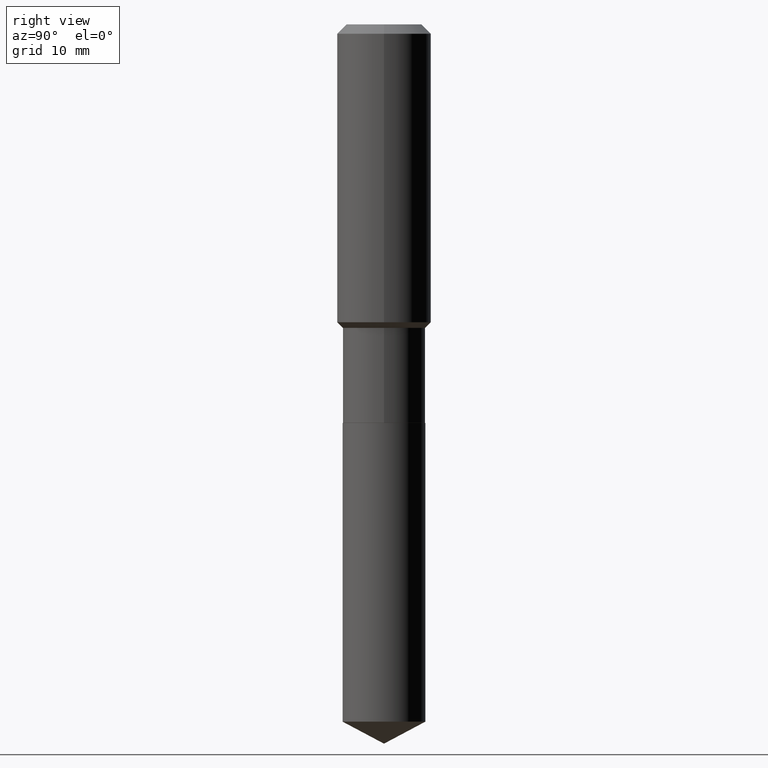
[diagram: clean part render]
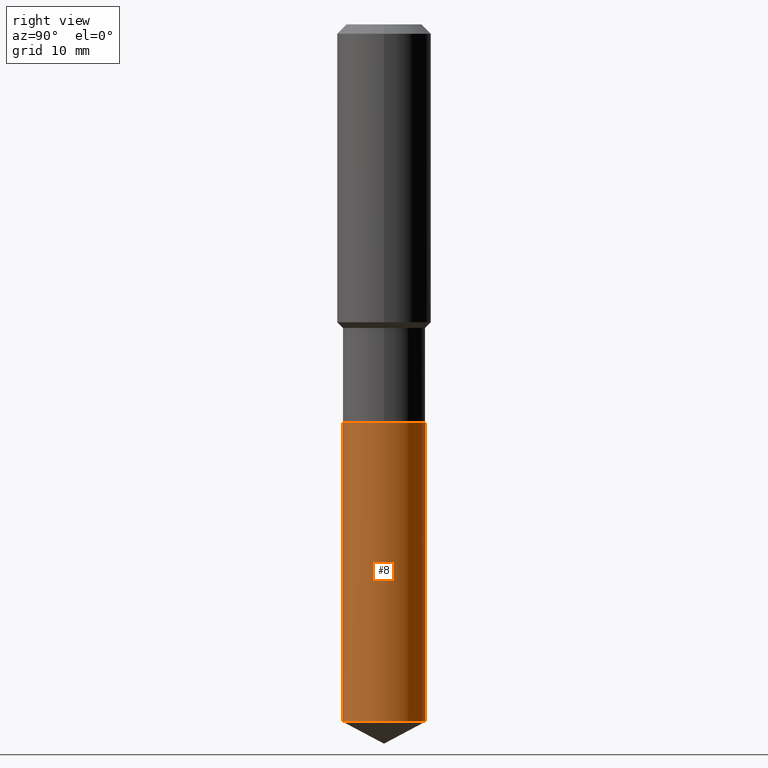
[diagram: same view with one face highlighted and labeled with its STEP entity id]
A machine part, right view. The second image highlights one B-rep face of the part: STEP entity #8.
In plain terms, the highlighted cylindrical surface (partial cylindrical patch) has radius 6.1519 mm, axis along (-0, 0, 1).
Its self-contained STEP definition (entity closure, byte-faithful):
#1 = CARTESIAN_POINT ( 'NONE',  ( -1.691273560535556602E-15, -0.2422000000000081865, -2.334799999999999542 ) ) ;
#8 = ADVANCED_FACE ( 'NONE', ( #30 ), #33, .T. ) ;
#30 = FACE_OUTER_BOUND ( 'NONE', #91, .T. ) ;
#33 = CYLINDRICAL_SURFACE ( 'NONE', #318, 0.2422000000000000264 ) ;
#35 = ORIENTED_EDGE ( 'NONE', *, *, #321, .F. ) ;
#91 = EDGE_LOOP ( 'NONE', ( #326, #375, #411, #35 ) ) ;
#107 = DIRECTION ( 'NONE',  ( -2.445495124633309796E-29, 3.491443649327408440E-15, 1.000000000000000000 ) ) ;
#115 = CARTESIAN_POINT ( 'NONE',  ( 1.720934506011062431E-15, 0.2421999999999857323, -4.083819975651591605 ) ) ;
#137 = VERTEX_POINT ( 'NONE', #115 ) ;
#148 = AXIS2_PLACEMENT_3D ( 'NONE', #433, #153, #455 ) ;
#153 = DIRECTION ( 'NONE',  ( -2.445495124633309796E-29, 3.491443649327408440E-15, 1.000000000000000000 ) ) ;
#154 = CARTESIAN_POINT ( 'NONE',  ( 1.720934506011019438E-15, 0.2421999999999918662, -2.334800000000000875 ) ) ;
#158 = DIRECTION ( 'NONE',  ( -6.982962677686265922E-15, -1.000000000000000000, 3.383791899666717075E-15 ) ) ;
#159 = DIRECTION ( 'NONE',  ( -2.445495124633309796E-29, 3.491443649327408440E-15, 1.000000000000000000 ) ) ;
#188 = DIRECTION ( 'NONE',  ( -2.445495124633309796E-29, 3.491443649327408440E-15, 1.000000000000000000 ) ) ;
#220 = AXIS2_PLACEMENT_3D ( 'NONE', #431, #159, #158 ) ;
#277 = CIRCLE ( 'NONE', #148, 0.2422000000000000264 ) ;
#301 = CARTESIAN_POINT ( 'NONE',  ( 1.720934506011062629E-15, 0.2421999999999918940, -2.334800000000000875 ) ) ;
#318 = AXIS2_PLACEMENT_3D ( 'NONE', #487, #107, #339 ) ;
#321 = EDGE_CURVE ( 'NONE', #439, #347, #333, .T. ) ;
#326 = ORIENTED_EDGE ( 'NONE', *, *, #342, .T. ) ;
#333 = LINE ( 'NONE', #1, #473 ) ;
#339 = DIRECTION ( 'NONE',  ( -6.982962677686265922E-15, -1.000000000000000000, 3.383791899666717075E-15 ) ) ;
#342 = EDGE_CURVE ( 'NONE', #439, #137, #277, .T. ) ;
#347 = VERTEX_POINT ( 'NONE', #388 ) ;
#353 = LINE ( 'NONE', #154, #465 ) ;
#375 = ORIENTED_EDGE ( 'NONE', *, *, #488, .T. ) ;
#384 = CARTESIAN_POINT ( 'NONE',  ( -1.691273560535513806E-15, -0.2422000000000142650, -4.083819975651588940 ) ) ;
#388 = CARTESIAN_POINT ( 'NONE',  ( -1.691273560535556602E-15, -0.2422000000000081865, -2.334799999999999542 ) ) ;
#411 = ORIENTED_EDGE ( 'NONE', *, *, #412, .F. ) ;
#412 = EDGE_CURVE ( 'NONE', #347, #485, #437, .T. ) ;
#431 = CARTESIAN_POINT ( 'NONE',  ( 5.709680568681056788E-29, -8.151910629930976498E-15, -2.334799999999999986 ) ) ;
#433 = CARTESIAN_POINT ( 'NONE',  ( 9.986900392023290788E-29, -1.425851531646649919E-14, -4.083819975651589829 ) ) ;
#437 = CIRCLE ( 'NONE', #220, 0.2422000000000000264 ) ;
#439 = VERTEX_POINT ( 'NONE', #384 ) ;
#452 = DIRECTION ( 'NONE',  ( -2.445495124633309796E-29, 3.491443649327408440E-15, 1.000000000000000000 ) ) ;
#455 = DIRECTION ( 'NONE',  ( -6.982962677686265922E-15, -1.000000000000000000, 4.511722532888956363E-15 ) ) ;
#465 = VECTOR ( 'NONE', #188, 39.37007874015748143 ) ;
#473 = VECTOR ( 'NONE', #452, 39.37007874015748143 ) ;
#485 = VERTEX_POINT ( 'NONE', #301 ) ;
#487 = CARTESIAN_POINT ( 'NONE',  ( 5.709680568681056788E-29, -8.151910629930976498E-15, -2.334799999999999986 ) ) ;
#488 = EDGE_CURVE ( 'NONE', #137, #485, #353, .T. ) ;